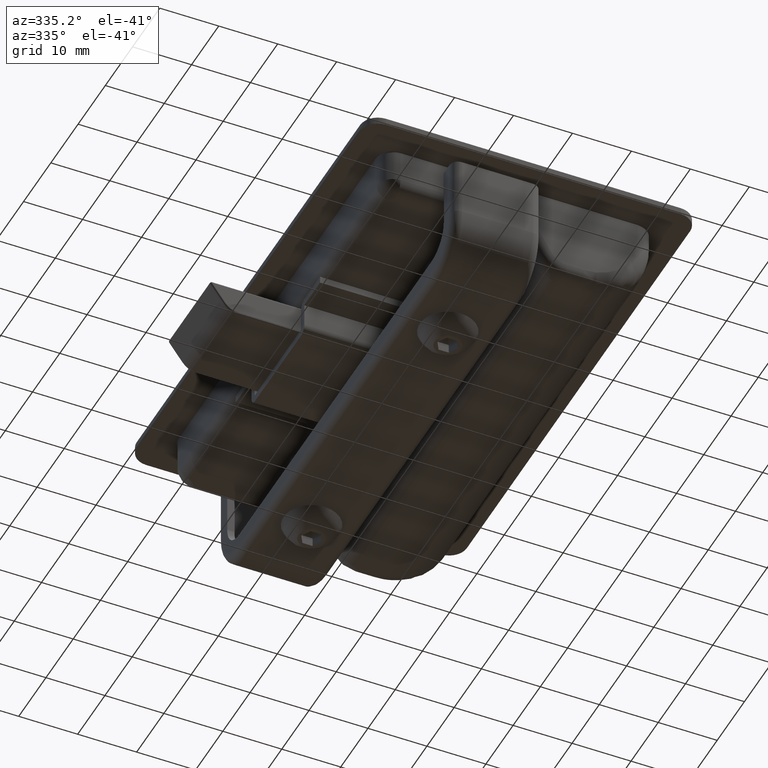
[diagram: clean part render]
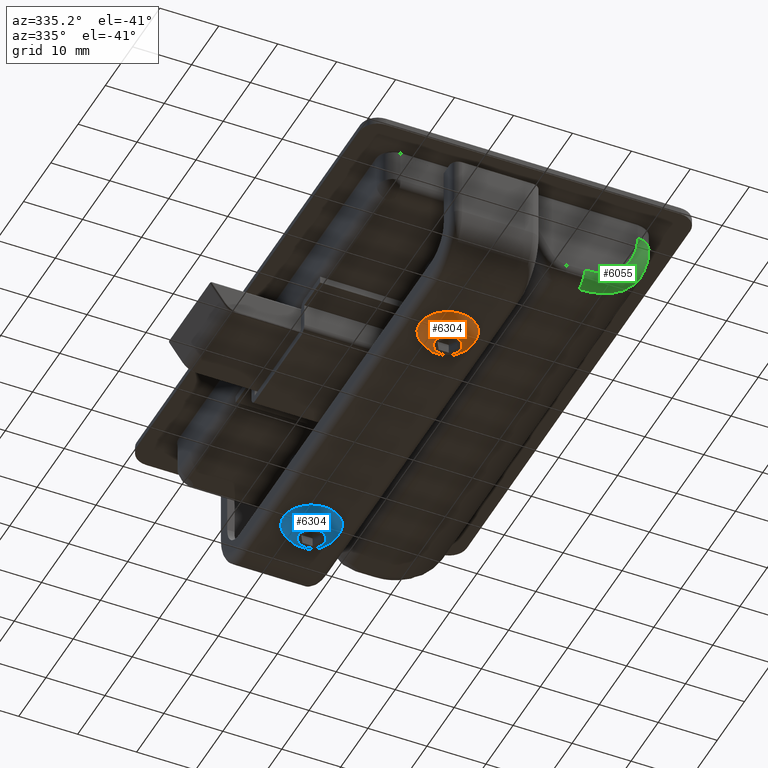
[diagram: same view with three faces highlighted in distinct colors, each labeled with its STEP entity id]
A machine part, auxiliary view with three faces highlighted in distinct colors.
Their STEP definitions:

[orange] entity #6304 — the highlighted spherical surface has radius 5.0908 mm.
#70=SPHERICAL_SURFACE('',#6947,5.09075568457179);
#1501=FACE_BOUND('',#2255,.T.);
#1823=FACE_OUTER_BOUND('',#2254,.T.);
#2254=EDGE_LOOP('',(#5474));
#2255=EDGE_LOOP('',(#5475));
#2625=CIRCLE('',#6948,4.75);
#2626=CIRCLE('',#6949,2.22);
#3097=VERTEX_POINT('',#12225);
#3098=VERTEX_POINT('',#12227);
#3902=EDGE_CURVE('',#3097,#3097,#2625,.T.);
#3903=EDGE_CURVE('',#3098,#3098,#2626,.T.);
#5474=ORIENTED_EDGE('',*,*,#3902,.T.);
#5475=ORIENTED_EDGE('',*,*,#3903,.F.);
#6304=ADVANCED_FACE('',(#1823,#1501),#70,.T.);
#6947=AXIS2_PLACEMENT_3D('',#12224,#8604,#8605);
#6948=AXIS2_PLACEMENT_3D('',#12226,#8606,#8607);
#6949=AXIS2_PLACEMENT_3D('',#12228,#8608,#8609);
#8604=DIRECTION('center_axis',(0.,1.22464679914735E-16,-1.));
#8605=DIRECTION('ref_axis',(0.,1.,6.12323399573676E-17));
#8606=DIRECTION('center_axis',(-1.,0.,0.));
#8607=DIRECTION('ref_axis',(0.,0.,1.));
#8608=DIRECTION('center_axis',(-1.,0.,0.));
#8609=DIRECTION('ref_axis',(0.,0.,1.));
#12224=CARTESIAN_POINT('Origin',(4.5812,-8.67361737988404E-16,0.));
#12225=CARTESIAN_POINT('',(2.75,4.75,0.));
#12226=CARTESIAN_POINT('Origin',(2.75,0.,0.));
#12227=CARTESIAN_POINT('',(0.,2.22,0.));
#12228=CARTESIAN_POINT('Origin',(0.,0.,0.));

[blue] entity #6304 — the highlighted spherical surface has radius 5.0908 mm.
#70=SPHERICAL_SURFACE('',#6947,5.09075568457179);
#1501=FACE_BOUND('',#2255,.T.);
#1823=FACE_OUTER_BOUND('',#2254,.T.);
#2254=EDGE_LOOP('',(#5474));
#2255=EDGE_LOOP('',(#5475));
#2625=CIRCLE('',#6948,4.75);
#2626=CIRCLE('',#6949,2.22);
#3097=VERTEX_POINT('',#12225);
#3098=VERTEX_POINT('',#12227);
#3902=EDGE_CURVE('',#3097,#3097,#2625,.T.);
#3903=EDGE_CURVE('',#3098,#3098,#2626,.T.);
#5474=ORIENTED_EDGE('',*,*,#3902,.T.);
#5475=ORIENTED_EDGE('',*,*,#3903,.F.);
#6304=ADVANCED_FACE('',(#1823,#1501),#70,.T.);
#6947=AXIS2_PLACEMENT_3D('',#12224,#8604,#8605);
#6948=AXIS2_PLACEMENT_3D('',#12226,#8606,#8607);
#6949=AXIS2_PLACEMENT_3D('',#12228,#8608,#8609);
#8604=DIRECTION('center_axis',(0.,1.22464679914735E-16,-1.));
#8605=DIRECTION('ref_axis',(0.,1.,6.12323399573676E-17));
#8606=DIRECTION('center_axis',(-1.,0.,0.));
#8607=DIRECTION('ref_axis',(0.,0.,1.));
#8608=DIRECTION('center_axis',(-1.,0.,0.));
#8609=DIRECTION('ref_axis',(0.,0.,1.));
#12224=CARTESIAN_POINT('Origin',(4.5812,-8.67361737988404E-16,0.));
#12225=CARTESIAN_POINT('',(2.75,4.75,0.));
#12226=CARTESIAN_POINT('Origin',(2.75,0.,0.));
#12227=CARTESIAN_POINT('',(0.,2.22,0.));
#12228=CARTESIAN_POINT('Origin',(0.,0.,0.));

[green] entity #6055 — the highlighted face is a freeform B-spline surface patch.
#160=(
BOUNDED_SURFACE()
B_SPLINE_SURFACE(2,3,((#10024,#10025,#10026,#10027,#10028,#10029,#10030,
#10031,#10032,#10033),(#10034,#10035,#10036,#10037,#10038,#10039,#10040,
#10041,#10042,#10043),(#10044,#10045,#10046,#10047,#10048,#10049,#10050,
#10051,#10052,#10053)),.UNSPECIFIED.,.F.,.F.,.F.)
B_SPLINE_SURFACE_WITH_KNOTS((3,3),(4,2,2,2,4),(0.,1.),(3.14159265358979,
3.53429173528852,3.92699081698724,4.31968989868597,4.71238898038469),
 .UNSPECIFIED.)
GEOMETRIC_REPRESENTATION_ITEM()
RATIONAL_B_SPLINE_SURFACE(((1.,1.,1.,1.,1.,1.,1.,1.,1.,1.),(0.707106781186548,
0.707106781186548,0.707106781186548,0.707106781186548,0.707106781186548,
0.707106781186548,0.707106781186548,0.707106781186548,0.707106781186548,
0.707106781186548),(1.,1.,1.,1.,1.,1.,1.,1.,1.,1.)))
REPRESENTATION_ITEM('')
SURFACE()
);
#181=B_SPLINE_CURVE_WITH_KNOTS('',3,(#9443,#9444,#9445,#9446,#9447,#9448,
#9449,#9450,#9451,#9452,#9453,#9454,#9455,#9456,#9457,#9458,#9459,#9460,
#9461,#9462,#9463,#9464,#9465,#9466,#9467,#9468,#9469,#9470,#9471,#9472,
#9473,#9474,#9475,#9476,#9477,#9478,#9479,#9480,#9481,#9482,#9483,#9484,
#9485,#9486,#9487,#9488,#9489,#9490,#9491,#9492,#9493,#9494,#9495,#9496,
#9497,#9498,#9499,#9500,#9501,#9502,#9503,#9504,#9505,#9506,#9507,#9508,
#9509,#9510,#9511,#9512,#9513,#9514,#9515,#9516,#9517,#9518,#9519,#9520,
#9521,#9522,#9523,#9524,#9525,#9526,#9527,#9528,#9529,#9530,#9531,#9532,
#9533,#9534,#9535,#9536,#9537,#9538,#9539,#9540,#9541,#9542,#9543,#9544,
#9545,#9546,#9547,#9548,#9549,#9550,#9551,#9552,#9553,#9554),
 .UNSPECIFIED.,.F.,.F.,(4,2,2,2,2,2,2,2,2,2,2,1,2,2,2,2,2,2,2,2,2,2,1,2,
2,2,2,2,2,2,2,2,2,2,2,2,2,2,2,2,2,2,2,2,2,2,2,2,2,2,2,2,2,2,2,2,4),(0.,
0.0349255558858236,0.0693532818134682,0.103063882818546,0.1250000000001,
0.157632677640347,0.18750000000015,0.218750000000175,0.234375000000187,
0.242187500000193,0.246093750000197,0.248046875000198,0.249023437500199,
0.250000000000199,0.278656631641079,0.306567483979952,0.312500000000254,
0.339577887318484,0.343750000000281,0.359375000000294,0.367187500000301,
0.371093750000304,0.373046875000306,0.374511718750307,0.375000000000308,
0.393498195943945,0.411859679520356,0.429959664025626,0.437500000000326,
0.455148252079688,0.472542088842899,0.489524041989949,0.500000000000345,
0.517009171739263,0.534285063190308,0.551951037584301,0.562500000000364,
0.580637643969185,0.598961014125791,0.617488317928546,0.624511718750383,
0.625000000000383,0.651355652558904,0.67837396358355,0.687500000000347,
0.71536142197533,0.744178907308972,0.749023437500311,0.75000000000031,0.781729222466684,
0.813811057790096,0.846504070963057,0.875000000000155,0.908760879460163,
0.942980985204543,0.977963784522523,1.),.UNSPECIFIED.);
#183=B_SPLINE_CURVE_WITH_KNOTS('',3,(#9690,#9691,#9692,#9693,#9694,#9695,
#9696,#9697,#9698,#9699,#9700,#9701,#9702,#9703,#9704,#9705,#9706,#9707,
#9708,#9709,#9710,#9711,#9712,#9713,#9714,#9715,#9716,#9717,#9718,#9719,
#9720,#9721,#9722,#9723,#9724,#9725,#9726,#9727,#9728,#9729,#9730,#9731,
#9732,#9733,#9734,#9735,#9736,#9737,#9738,#9739,#9740,#9741,#9742,#9743,
#9744,#9745,#9746,#9747,#9748,#9749,#9750,#9751,#9752,#9753,#9754,#9755,
#9756,#9757,#9758,#9759,#9760,#9761,#9762),.UNSPECIFIED.,.F.,.F.,(4,3,3,
3,3,3,3,3,3,3,3,3,3,3,3,3,3,3,3,3,3,3,3,3,4),(0.,0.109375000000001,0.118307319666576,
0.125000000000001,0.234375000000005,0.242955849384481,0.250000000000005,
0.359375000000007,0.367851562355967,0.375000000000008,0.47088416848697,
0.484375000000008,0.492708720667498,0.500000000000008,0.608716621140743,
0.617187500000009,0.623091517429699,0.625000000000009,0.734375000000006,
0.742846919212108,0.750000000000005,0.859375000000003,0.868115181283217,
0.875000000000003,1.),.UNSPECIFIED.);
#1574=FACE_OUTER_BOUND('',#1992,.T.);
#1992=EDGE_LOOP('',(#4360,#4361,#4362,#4363));
#2420=CIRCLE('',#6512,3.);
#2422=CIRCLE('',#6515,2.20000000000001);
#2777=VERTEX_POINT('',#9434);
#2779=VERTEX_POINT('',#9440);
#2783=VERTEX_POINT('',#9673);
#2791=VERTEX_POINT('',#9688);
#3325=EDGE_CURVE('',#2779,#2777,#181,.T.);
#3338=EDGE_CURVE('',#2791,#2783,#183,.T.);
#3367=EDGE_CURVE('',#2779,#2783,#2420,.T.);
#3369=EDGE_CURVE('',#2777,#2791,#2422,.T.);
#4360=ORIENTED_EDGE('',*,*,#3367,.T.);
#4361=ORIENTED_EDGE('',*,*,#3338,.F.);
#4362=ORIENTED_EDGE('',*,*,#3369,.F.);
#4363=ORIENTED_EDGE('',*,*,#3325,.F.);
#6055=ADVANCED_FACE('',(#1574),#160,.T.);
#6512=AXIS2_PLACEMENT_3D('',#10021,#7422,#7423);
#6515=AXIS2_PLACEMENT_3D('',#10054,#7428,#7429);
#7422=DIRECTION('center_axis',(3.74178936112393E-15,8.65570108052365E-15,
-1.));
#7423=DIRECTION('ref_axis',(-1.48029736616688E-15,1.,8.65570108052364E-15));
#7428=DIRECTION('center_axis',(1.,1.42735678062161E-15,-3.4459440981219E-15));
#7429=DIRECTION('ref_axis',(-1.42735678062162E-15,1.,-2.01858731750028E-15));
#9434=CARTESIAN_POINT('',(-11.,36.8,-16.));
#9440=CARTESIAN_POINT('',(-23.,36.,-4.));
#9443=CARTESIAN_POINT('Ctrl Pts',(-23.,36.,-4.));
#9444=CARTESIAN_POINT('Ctrl Pts',(-23.,36.0000000000927,-4.19505904351759));
#9445=CARTESIAN_POINT('Ctrl Pts',(-22.9951861437271,36.0008047311905,-4.39352315250845));
#9446=CARTESIAN_POINT('Ctrl Pts',(-22.9751447472418,36.0040224989448,-4.79387736524702));
#9447=CARTESIAN_POINT('Ctrl Pts',(-22.9600665491248,36.0064124672978,-4.9956784580289));
#9448=CARTESIAN_POINT('Ctrl Pts',(-22.9191784872988,36.0127166073673,-5.40055459423417));
#9449=CARTESIAN_POINT('Ctrl Pts',(-22.893598633672,36.0165980013542,-5.60351561792863));
#9450=CARTESIAN_POINT('Ctrl Pts',(-22.8418325230886,36.0242550002748,-5.94239223630963));
#9451=CARTESIAN_POINT('Ctrl Pts',(-22.8189786502988,36.0275938772051,-6.0769638296011));
#9452=CARTESIAN_POINT('Ctrl Pts',(-22.7557419948672,36.0366886714487,-6.41392699321031));
#9453=CARTESIAN_POINT('Ctrl Pts',(-22.7122451698856,36.0428354566006,-6.61739807736768));
#9454=CARTESIAN_POINT('Ctrl Pts',(-22.6172974072737,36.0559717343663,-7.01015329538423));
#9455=CARTESIAN_POINT('Ctrl Pts',(-22.566832802605,36.0628456147455,-7.19917808125185));
#9456=CARTESIAN_POINT('Ctrl Pts',(-22.4525212489778,36.078124977255,-7.58805718936598));
#9457=CARTESIAN_POINT('Ctrl Pts',(-22.3881628624273,36.0865885312952,-7.78800802236857));
#9458=CARTESIAN_POINT('Ctrl Pts',(-22.2822338994081,36.1002604144994,-8.08897648961024));
#9459=CARTESIAN_POINT('Ctrl Pts',(-22.2453590293373,36.1049804678114,-8.18947217978512));
#9460=CARTESIAN_POINT('Ctrl Pts',(-22.1876334724389,36.1123046873379,-8.34038872185351));
#9461=CARTESIAN_POINT('Ctrl Pts',(-22.1679893996738,36.1147867837841,-8.39072305532924));
#9462=CARTESIAN_POINT('Ctrl Pts',(-22.1379118652523,36.1185709635307,-8.46625638733205));
#9463=CARTESIAN_POINT('Ctrl Pts',(-22.1277841156657,36.1198425292921,-8.49143946891018));
#9464=CARTESIAN_POINT('Ctrl Pts',(-22.1124386225257,36.121765136718,-8.52922059960853));
#9465=CARTESIAN_POINT('Ctrl Pts',(-22.1047274087113,36.1227302551269,-8.54811279193306));
#9466=CARTESIAN_POINT('Ctrl Pts',(-22.0969583048486,36.123701095581,-8.56700714984544));
#9467=CARTESIAN_POINT('Ctrl Pts',(-22.0917660168239,36.1243495941162,-8.57960383894457));
#9468=CARTESIAN_POINT('Ctrl Pts',(-22.088640845197,36.1247396802644,-8.58716404027412));
#9469=CARTESIAN_POINT('Ctrl Pts',(-22.0253286374211,36.1326389896821,-8.74001323095045));
#9470=CARTESIAN_POINT('Ctrl Pts',(-21.95934974085,36.1407689135062,-8.89083842578487));
#9471=CARTESIAN_POINT('Ctrl Pts',(-21.8188465042018,36.157795147632,-9.19381961442995));
#9472=CARTESIAN_POINT('Ctrl Pts',(-21.7445890100953,36.1666660533042,-9.34583893518138));
#9473=CARTESIAN_POINT('Ctrl Pts',(-21.6480670850734,36.1779890637244,-9.5327807641911));
#9474=CARTESIAN_POINT('Ctrl Pts',(-21.6309059722375,36.1799949947249,-9.56564749389676));
#9475=CARTESIAN_POINT('Ctrl Pts',(-21.5340505044413,36.1912735471924,-9.74904695736148));
#9476=CARTESIAN_POINT('Ctrl Pts',(-21.4494881860049,36.200965432853,-9.90143251536127));
#9477=CARTESIAN_POINT('Ctrl Pts',(-21.3455616474455,36.2126594952046,-10.0790855534147));
#9478=CARTESIAN_POINT('Ctrl Pts',(-21.3315563570203,36.2142311929372,-10.1028402700993));
#9479=CARTESIAN_POINT('Ctrl Pts',(-21.2644749852081,36.2217385821295,-10.2157255638577));
#9480=CARTESIAN_POINT('Ctrl Pts',(-21.2096836770539,36.2278105166569,-10.3053141987185));
#9481=CARTESIAN_POINT('Ctrl Pts',(-21.1246191921513,36.2371384355299,-10.4403086196464));
#9482=CARTESIAN_POINT('Ctrl Pts',(-21.095784738974,36.2402844113264,-10.4854086523693));
#9483=CARTESIAN_POINT('Ctrl Pts',(-21.0518004047461,36.2450583790838,-10.553194509946));
#9484=CARTESIAN_POINT('Ctrl Pts',(-21.0370168486381,36.2466588690131,-10.5758124293598));
#9485=CARTESIAN_POINT('Ctrl Pts',(-21.0146566904926,36.2490733548968,-10.6097710934662));
#9486=CARTESIAN_POINT('Ctrl Pts',(-21.0015593576521,36.2504858157009,-10.6295895846645));
#9487=CARTESIAN_POINT('Ctrl Pts',(-20.9883672652944,36.2519052952329,-10.6494237391988));
#9488=CARTESIAN_POINT('Ctrl Pts',(-20.9808056429672,36.252718145265,-10.6607612741147));
#9489=CARTESIAN_POINT('Ctrl Pts',(-20.978154352312,36.2530030326801,-10.6647318099608));
#9490=CARTESIAN_POINT('Ctrl Pts',(-20.9340073051626,36.2577456649109,-10.7308025351293));
#9491=CARTESIAN_POINT('Ctrl Pts',(-20.8871893333037,36.2627528882394,-10.7995380267073));
#9492=CARTESIAN_POINT('Ctrl Pts',(-20.7857487330007,36.2735052034078,-10.9447677591401));
#9493=CARTESIAN_POINT('Ctrl Pts',(-20.7311861084739,36.2792446362081,-11.0212011491634));
#9494=CARTESIAN_POINT('Ctrl Pts',(-20.6142227599304,36.29140417982,-11.1805970271813));
#9495=CARTESIAN_POINT('Ctrl Pts',(-20.5519444601116,36.2978135006583,-11.2634512366174));
#9496=CARTESIAN_POINT('Ctrl Pts',(-20.4572947897267,36.3074189515589,-11.385699647142));
#9497=CARTESIAN_POINT('Ctrl Pts',(-20.4286724744399,36.3103081453762,-11.4222476373651));
#9498=CARTESIAN_POINT('Ctrl Pts',(-20.3303468588192,36.3201736788921,-11.5462542450339));
#9499=CARTESIAN_POINT('Ctrl Pts',(-20.2570063045305,36.3274335954792,-11.6362896399836));
#9500=CARTESIAN_POINT('Ctrl Pts',(-20.1019072348251,36.3425540481122,-11.8206616075057));
#9501=CARTESIAN_POINT('Ctrl Pts',(-20.0202850570989,36.350404489509,-11.914917668792));
#9502=CARTESIAN_POINT('Ctrl Pts',(-19.8491729016175,36.3666054217115,-12.1058915342806));
#9503=CARTESIAN_POINT('Ctrl Pts',(-19.7599147452607,36.3749397279332,-12.2024983112097));
#9504=CARTESIAN_POINT('Ctrl Pts',(-19.6074483264039,36.3889437380843,-12.3617353560721));
#9505=CARTESIAN_POINT('Ctrl Pts',(-19.5473607164397,36.3944108956754,-12.4232020320374));
#9506=CARTESIAN_POINT('Ctrl Pts',(-19.3844869464745,36.4090746869621,-12.5860758020027));
#9507=CARTESIAN_POINT('Ctrl Pts',(-19.285312471057,36.4178399202594,-12.6816178750164));
#9508=CARTESIAN_POINT('Ctrl Pts',(-19.089519403592,36.4348535344548,-12.8642543971165));
#9509=CARTESIAN_POINT('Ctrl Pts',(-18.9929650748429,36.4430917229917,-12.9511931382646));
#9510=CARTESIAN_POINT('Ctrl Pts',(-18.8027122049103,36.4590584780305,-13.1173957713622));
#9511=CARTESIAN_POINT('Ctrl Pts',(-18.7091272203538,36.4667714024866,-13.1964423270148));
#9512=CARTESIAN_POINT('Ctrl Pts',(-18.5643922431965,36.478509629147,-13.3152664865789));
#9513=CARTESIAN_POINT('Ctrl Pts',(-18.5113345604422,36.4827688437462,-13.3580346223385));
#9514=CARTESIAN_POINT('Ctrl Pts',(-18.3701071351253,36.4939992822796,-13.4700154913816));
#9515=CARTESIAN_POINT('Ctrl Pts',(-18.2841373611082,36.5007172183923,-13.5361215645045));
#9516=CARTESIAN_POINT('Ctrl Pts',(-18.1186139864382,36.5134599346034,-13.6602386934247));
#9517=CARTESIAN_POINT('Ctrl Pts',(-18.0391348359096,36.5194769912955,-13.718160197674));
#9518=CARTESIAN_POINT('Ctrl Pts',(-17.8872805580582,36.530814550447,-13.8263303452087));
#9519=CARTESIAN_POINT('Ctrl Pts',(-17.8149941094254,36.5361266295613,-13.8764866775934));
#9520=CARTESIAN_POINT('Ctrl Pts',(-17.7212267333298,36.542930401448,-13.9402371535479));
#9521=CARTESIAN_POINT('Ctrl Pts',(-17.696068509494,36.5447462471127,-13.9571959049123));
#9522=CARTESIAN_POINT('Ctrl Pts',(-17.669832677251,36.5466307798305,-13.9747454378134));
#9523=CARTESIAN_POINT('Ctrl Pts',(-17.669265725524,36.5466715181257,-13.9751248867868));
#9524=CARTESIAN_POINT('Ctrl Pts',(-17.5134212341512,36.5578582473869,-14.0792568467594));
#9525=CARTESIAN_POINT('Ctrl Pts',(-17.361310436214,36.5684372149074,-14.1758377646869));
#9526=CARTESIAN_POINT('Ctrl Pts',(-17.0559562660717,36.5890142599738,-14.3606599758569));
#9527=CARTESIAN_POINT('Ctrl Pts',(-16.9027804939598,36.5989910831205,-14.4486307064798));
#9528=CARTESIAN_POINT('Ctrl Pts',(-16.7002832173447,36.6117418646282,-14.5593383215252));
#9529=CARTESIAN_POINT('Ctrl Pts',(-16.6493606547532,36.6149105394056,-14.5866957326176));
#9530=CARTESIAN_POINT('Ctrl Pts',(-16.44386595707,36.6275472613179,-14.6952212184764));
#9531=CARTESIAN_POINT('Ctrl Pts',(-16.2911304225601,36.6365921788959,-14.7715582008003));
#9532=CARTESIAN_POINT('Ctrl Pts',(-15.9853769719072,36.6540377293666,-14.9166775502618));
#9533=CARTESIAN_POINT('Ctrl Pts',(-15.8325289908023,36.6624056543905,-14.9851110836959));
#9534=CARTESIAN_POINT('Ctrl Pts',(-15.6574615244251,36.6716094247219,-15.0593285531011));
#9535=CARTESIAN_POINT('Ctrl Pts',(-15.6323503452879,36.6729202073591,-15.0698712895005));
#9536=CARTESIAN_POINT('Ctrl Pts',(-15.6022800823506,36.6744787424762,-15.0823755018546));
#9537=CARTESIAN_POINT('Ctrl Pts',(-15.5984998615681,36.6746744819214,-15.0839453942764));
#9538=CARTESIAN_POINT('Ctrl Pts',(-15.3875527375188,36.6855764095156,-15.1713225540012));
#9539=CARTESIAN_POINT('Ctrl Pts',(-15.1831395017867,36.6955209446094,-15.2492748247375));
#9540=CARTESIAN_POINT('Ctrl Pts',(-14.7734905946385,36.7141940145505,-15.3930793332682));
#9541=CARTESIAN_POINT('Ctrl Pts',(-14.5682709204611,36.7229078346577,-15.4587875204195));
#9542=CARTESIAN_POINT('Ctrl Pts',(-14.1563147987967,36.7391012774847,-15.578914622809));
#9543=CARTESIAN_POINT('Ctrl Pts',(-13.9496238842235,36.7465542433041,-15.6330946768697));
#9544=CARTESIAN_POINT('Ctrl Pts',(-13.565867427919,36.7591352134211,-15.7231762906186));
#9545=CARTESIAN_POINT('Ctrl Pts',(-13.38840419298,36.7644390244841,-15.7605314655631));
#9546=CARTESIAN_POINT('Ctrl Pts',(-13.003967555256,36.7748099052709,-15.8326780239954));
#9547=CARTESIAN_POINT('Ctrl Pts',(-12.7975902382437,36.7796522664475,-15.8657226743899));
#9548=CARTESIAN_POINT('Ctrl Pts',(-12.3869732135144,36.7878401238237,-15.9208931538209));
#9549=CARTESIAN_POINT('Ctrl Pts',(-12.1828006283503,36.7911643988932,-15.9428644137771));
#9550=CARTESIAN_POINT('Ctrl Pts',(-11.7756550760337,36.7963042621306,-15.9764702935209));
#9551=CARTESIAN_POINT('Ctrl Pts',(-11.5728101877158,36.7980846012498,-15.9878636989989));
#9552=CARTESIAN_POINT('Ctrl Pts',(-11.2475038175007,36.7996930602623,-15.9980834036893));
#9553=CARTESIAN_POINT('Ctrl Pts',(-11.1230747458433,36.8,-16.));
#9554=CARTESIAN_POINT('Ctrl Pts',(-11.,36.8,-16.));
#9673=CARTESIAN_POINT('',(-20.,39.,-3.99999999999997));
#9688=CARTESIAN_POINT('',(-11.,39.,-13.8));
#9690=CARTESIAN_POINT('Ctrl Pts',(-11.,39.,-13.8));
#9691=CARTESIAN_POINT('Ctrl Pts',(-11.557002821236,39.,-13.7999999996746));
#9692=CARTESIAN_POINT('Ctrl Pts',(-12.1127876068775,38.9999999974164,-13.7430874026237));
#9693=CARTESIAN_POINT('Ctrl Pts',(-12.6673543569243,38.9999999997573,-13.6292622088469));
#9694=CARTESIAN_POINT('Ctrl Pts',(-12.7126441168134,38.9999999999485,-13.6199664555493));
#9695=CARTESIAN_POINT('Ctrl Pts',(-12.7583884502914,38.999999999977,-13.6101934099285));
#9696=CARTESIAN_POINT('Ctrl Pts',(-12.8037929963296,38.9999999999902,-13.6001073631555));
#9697=CARTESIAN_POINT('Ctrl Pts',(-12.8378130631948,39.,-13.5925502347276));
#9698=CARTESIAN_POINT('Ctrl Pts',(-12.8716425883219,38.9999999999994,-13.5848184771717));
#9699=CARTESIAN_POINT('Ctrl Pts',(-12.9049520986147,38.9999999999958,-13.5769998151208));
#9700=CARTESIAN_POINT('Ctrl Pts',(-13.4493121317806,38.9999999999362,-13.4492234804969));
#9701=CARTESIAN_POINT('Ctrl Pts',(-13.9760967347059,38.9999999968831,-13.2703114035519));
#9702=CARTESIAN_POINT('Ctrl Pts',(-14.4853058136639,38.9999999997019,-13.0402592711428));
#9703=CARTESIAN_POINT('Ctrl Pts',(-14.5252550379999,38.9999999999231,-13.022210880754));
#9704=CARTESIAN_POINT('Ctrl Pts',(-14.565571327067,38.9999999999668,-13.0036299388136));
#9705=CARTESIAN_POINT('Ctrl Pts',(-14.6054697058047,38.9999999999857,-12.9848716122238));
#9706=CARTESIAN_POINT('Ctrl Pts',(-14.6382228956756,39.0000000000012,-12.9694726147734));
#9707=CARTESIAN_POINT('Ctrl Pts',(-14.6706948627807,38.9999999999996,-12.9539549944001));
#9708=CARTESIAN_POINT('Ctrl Pts',(-14.7024638285376,38.9999999999961,-12.9385383890514));
#9709=CARTESIAN_POINT('Ctrl Pts',(-15.1957426948355,38.9999999999421,-12.699163721749));
#9710=CARTESIAN_POINT('Ctrl Pts',(-15.6658428411286,38.9999999986636,-12.41382916687));
#9711=CARTESIAN_POINT('Ctrl Pts',(-16.1127633787416,38.9999999998792,-12.082530701082));
#9712=CARTESIAN_POINT('Ctrl Pts',(-16.147399719818,38.9999999999734,-12.0568550704197));
#9713=CARTESIAN_POINT('Ctrl Pts',(-16.182351976013,38.9999999999874,-12.0305622634015));
#9714=CARTESIAN_POINT('Ctrl Pts',(-16.2168764525706,38.9999999999943,-12.0042041009744));
#9715=CARTESIAN_POINT('Ctrl Pts',(-16.2459915652191,39.0000000000001,-11.9819757880559));
#9716=CARTESIAN_POINT('Ctrl Pts',(-16.2748030263222,38.9999999999997,-11.9597017732107));
#9717=CARTESIAN_POINT('Ctrl Pts',(-16.3028837559435,38.9999999999969,-11.9377347878299));
#9718=CARTESIAN_POINT('Ctrl Pts',(-16.6795391237765,38.9999999999584,-11.6430849311363));
#9719=CARTESIAN_POINT('Ctrl Pts',(-17.0307721390402,38.9999999975733,-11.3212020300626));
#9720=CARTESIAN_POINT('Ctrl Pts',(-17.3568302921069,38.9999999991865,-10.9722431766727));
#9721=CARTESIAN_POINT('Ctrl Pts',(-17.4027064328284,38.9999999994135,-10.9231449243715));
#9722=CARTESIAN_POINT('Ctrl Pts',(-17.4480785910183,38.9999999996863,-10.8735068755568));
#9723=CARTESIAN_POINT('Ctrl Pts',(-17.4929416565017,38.9999999998578,-10.823326113628));
#9724=CARTESIAN_POINT('Ctrl Pts',(-17.5206550154348,38.9999999999637,-10.7923278425138));
#9725=CARTESIAN_POINT('Ctrl Pts',(-17.5485776578927,38.9999999999835,-10.7606715352451));
#9726=CARTESIAN_POINT('Ctrl Pts',(-17.5760645492844,38.9999999999926,-10.7290788343793));
#9727=CARTESIAN_POINT('Ctrl Pts',(-17.6001131838758,39.0000000000006,-10.7014379743035));
#9728=CARTESIAN_POINT('Ctrl Pts',(-17.6238289079682,38.9999999999998,-10.6738463726154));
#9729=CARTESIAN_POINT('Ctrl Pts',(-17.6468064168019,38.9999999999973,-10.6468064168019));
#9730=CARTESIAN_POINT('Ctrl Pts',(-17.9894125643252,38.9999999999589,-10.2436271532215));
#9731=CARTESIAN_POINT('Ctrl Pts',(-18.2977634587922,38.9999999998897,-9.81146238614087));
#9732=CARTESIAN_POINT('Ctrl Pts',(-18.5720182747713,38.9999999999839,-9.35034428282586));
#9733=CARTESIAN_POINT('Ctrl Pts',(-18.593387402126,38.9999999999912,-9.31441531858828));
#9734=CARTESIAN_POINT('Ctrl Pts',(-18.614547472992,38.9999999999968,-9.27831011222958));
#9735=CARTESIAN_POINT('Ctrl Pts',(-18.6354975055626,38.999999999999,-9.24202850249731));
#9736=CARTESIAN_POINT('Ctrl Pts',(-18.650099220391,39.0000000000005,-9.21674101346632));
#9737=CARTESIAN_POINT('Ctrl Pts',(-18.6649185235745,39.0000000000001,-9.19080848399705));
#9738=CARTESIAN_POINT('Ctrl Pts',(-18.6792325937985,38.9999999999999,-9.16549919636698));
#9739=CARTESIAN_POINT('Ctrl Pts',(-18.6838596386638,38.9999999999998,-9.1573179308331));
#9740=CARTESIAN_POINT('Ctrl Pts',(-18.6884342640826,38.9999999999997,-9.14920196515931));
#9741=CARTESIAN_POINT('Ctrl Pts',(-18.6929331037973,38.9999999999994,-9.14119462653036));
#9742=CARTESIAN_POINT('Ctrl Pts',(-18.9507612870073,38.9999999999824,-8.68229462075248));
#9743=CARTESIAN_POINT('Ctrl Pts',(-19.171198182499,38.9999999995208,-8.20404088280483));
#9744=CARTESIAN_POINT('Ctrl Pts',(-19.3542425106949,38.999999999959,-7.7064321843314));
#9745=CARTESIAN_POINT('Ctrl Pts',(-19.3684206753642,38.999999999993,-7.66788863514094));
#9746=CARTESIAN_POINT('Ctrl Pts',(-19.3825983067448,38.9999999999962,-7.62861121951757));
#9747=CARTESIAN_POINT('Ctrl Pts',(-19.3964068963704,38.9999999999982,-7.58960369914391));
#9748=CARTESIAN_POINT('Ctrl Pts',(-19.4080658787906,38.9999999999999,-7.55666854742886));
#9749=CARTESIAN_POINT('Ctrl Pts',(-19.419462704487,38.9999999999999,-7.52392610399419));
#9750=CARTESIAN_POINT('Ctrl Pts',(-19.4304037073728,38.9999999999982,-7.49198755187424));
#9751=CARTESIAN_POINT('Ctrl Pts',(-19.5976983634959,38.999999999973,-7.00362746735938));
#9752=CARTESIAN_POINT('Ctrl Pts',(-19.7284081965358,38.9999999999404,-6.50125116306438));
#9753=CARTESIAN_POINT('Ctrl Pts',(-19.8225318698441,38.999999999996,-5.98485701538352));
#9754=CARTESIAN_POINT('Ctrl Pts',(-19.8300533141207,39.0000000000005,-5.94359184085259));
#9755=CARTESIAN_POINT('Ctrl Pts',(-19.8374571710677,38.9999999999999,-5.90157983432978));
#9756=CARTESIAN_POINT('Ctrl Pts',(-19.8445444173506,38.9999999999998,-5.85992354021767));
#9757=CARTESIAN_POINT('Ctrl Pts',(-19.8501271855195,38.9999999999998,-5.82711002936684));
#9758=CARTESIAN_POINT('Ctrl Pts',(-19.8555145871532,38.9999999999998,-5.79451740709554));
#9759=CARTESIAN_POINT('Ctrl Pts',(-19.8606319896015,38.9999999999981,-5.76268727908135));
#9760=CARTESIAN_POINT('Ctrl Pts',(-19.9535429771461,38.9999999999684,-5.18478302837473));
#9761=CARTESIAN_POINT('Ctrl Pts',(-20.0000000003812,39.,-4.59722102373594));
#9762=CARTESIAN_POINT('Ctrl Pts',(-20.,39.,-3.99999999999999));
#10021=CARTESIAN_POINT('Origin',(-20.,36.,-3.99999999999999));
#10024=CARTESIAN_POINT('Ctrl Pts',(-11.,39.,-13.8));
#10025=CARTESIAN_POINT('Ctrl Pts',(-12.2846038841584,39.,-13.7999999992496));
#10026=CARTESIAN_POINT('Ctrl Pts',(-13.5611120401236,39.,-13.4924766103885));
#10027=CARTESIAN_POINT('Ctrl Pts',(-15.8438123761409,39.,-12.3845923437049));
#10028=CARTESIAN_POINT('Ctrl Pts',(-16.8474498463792,39.,-11.5875789951437));
#10029=CARTESIAN_POINT('Ctrl Pts',(-18.4461576399278,39.,-9.70602849116339));
#10030=CARTESIAN_POINT('Ctrl Pts',(-19.0425917584432,39.,-8.62422445219909));
#10031=CARTESIAN_POINT('Ctrl Pts',(-19.8182097098878,39.,-6.35974818846382));
#10032=CARTESIAN_POINT('Ctrl Pts',(-20.0000000007512,39.,-5.1767540553126));
#10033=CARTESIAN_POINT('Ctrl Pts',(-20.,39.,-3.99999999999999));
#10034=CARTESIAN_POINT('Ctrl Pts',(-11.,39.,-16.));
#10035=CARTESIAN_POINT('Ctrl Pts',(-12.571079535833,39.,-16.0000000000082));
#10036=CARTESIAN_POINT('Ctrl Pts',(-14.1409746139922,39.,-15.6876721193263));
#10037=CARTESIAN_POINT('Ctrl Pts',(-17.0434277627699,39.,-14.4854366609446));
#10038=CARTESIAN_POINT('Ctrl Pts',(-18.3745606409828,39.,-13.596002107493));
#10039=CARTESIAN_POINT('Ctrl Pts',(-20.5960021074943,39.,-11.3745606409842));
#10040=CARTESIAN_POINT('Ctrl Pts',(-21.4854366609473,38.9999999999946,-10.04342776277));
#10041=CARTESIAN_POINT('Ctrl Pts',(-22.6876721193236,39.0000000000054,-7.1409746139922));
#10042=CARTESIAN_POINT('Ctrl Pts',(-23.0000000000082,39.,-5.57107953583304));
#10043=CARTESIAN_POINT('Ctrl Pts',(-23.,39.,-3.99999999999998));
#10044=CARTESIAN_POINT('Ctrl Pts',(-11.,36.8,-16.));
#10045=CARTESIAN_POINT('Ctrl Pts',(-12.5710795358346,36.7999999992478,-16.));
#10046=CARTESIAN_POINT('Ctrl Pts',(-14.1409746139901,36.7499999996231,-15.6876721193244));
#10047=CARTESIAN_POINT('Ctrl Pts',(-17.0434277627721,36.6000000003769,-14.4854366609464));
#10048=CARTESIAN_POINT('Ctrl Pts',(-18.3745606409835,36.4999999996265,-13.5960021074936));
#10049=CARTESIAN_POINT('Ctrl Pts',(-20.5960021074937,36.3000000003735,-11.3745606409835));
#10050=CARTESIAN_POINT('Ctrl Pts',(-21.4854366609473,36.1999999996231,-10.04342776277));
#10051=CARTESIAN_POINT('Ctrl Pts',(-22.6876721193236,36.0500000003769,-7.1409746139922));
#10052=CARTESIAN_POINT('Ctrl Pts',(-23.,36.0000000007468,-5.57107953583304));
#10053=CARTESIAN_POINT('Ctrl Pts',(-23.,36.,-3.99999999999998));
#10054=CARTESIAN_POINT('Origin',(-11.,36.8,-13.8));